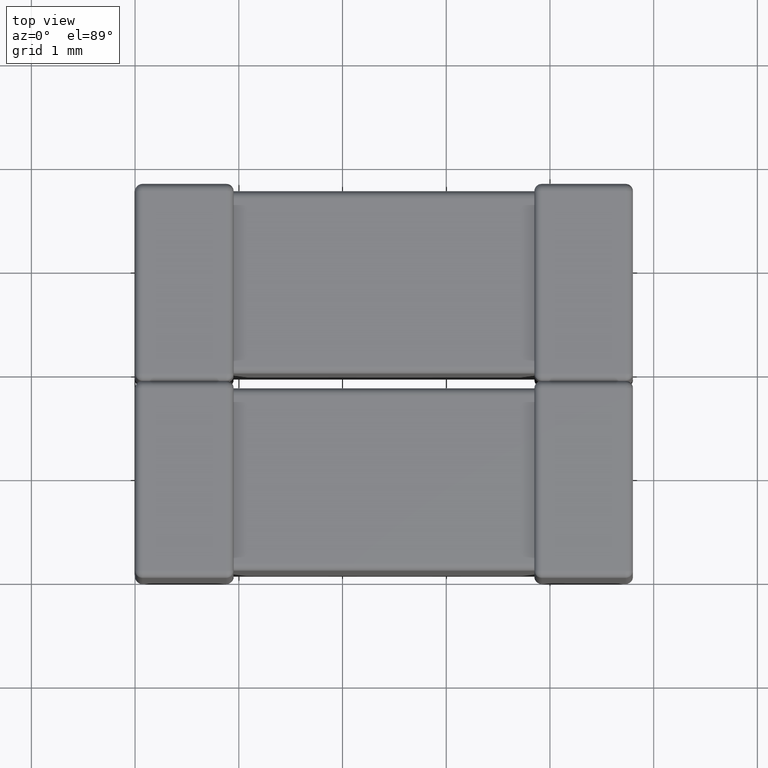
[diagram: clean part render]
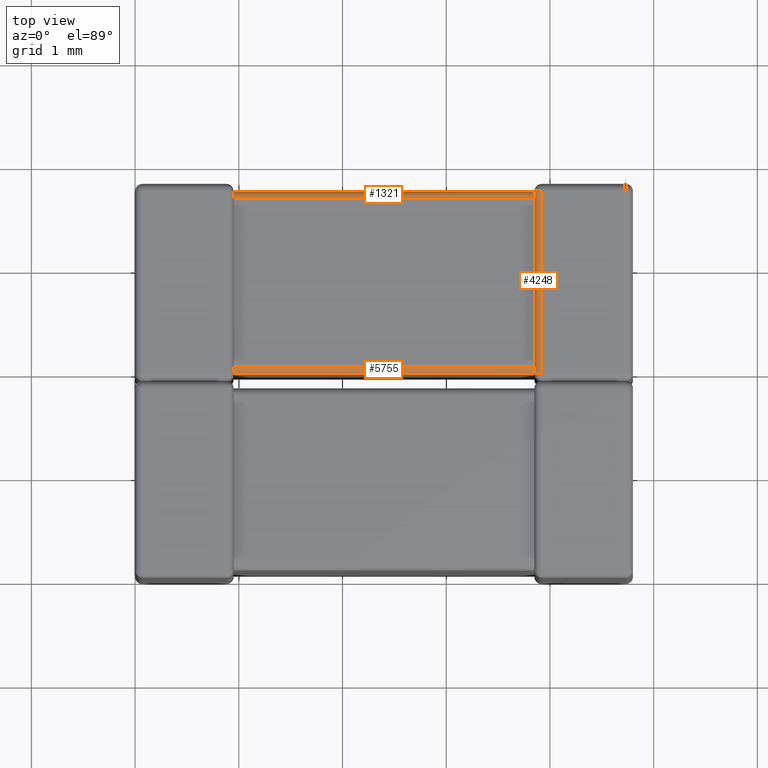
[diagram: same view with one multi-face feature highlighted, each face labeled with its STEP entity id]
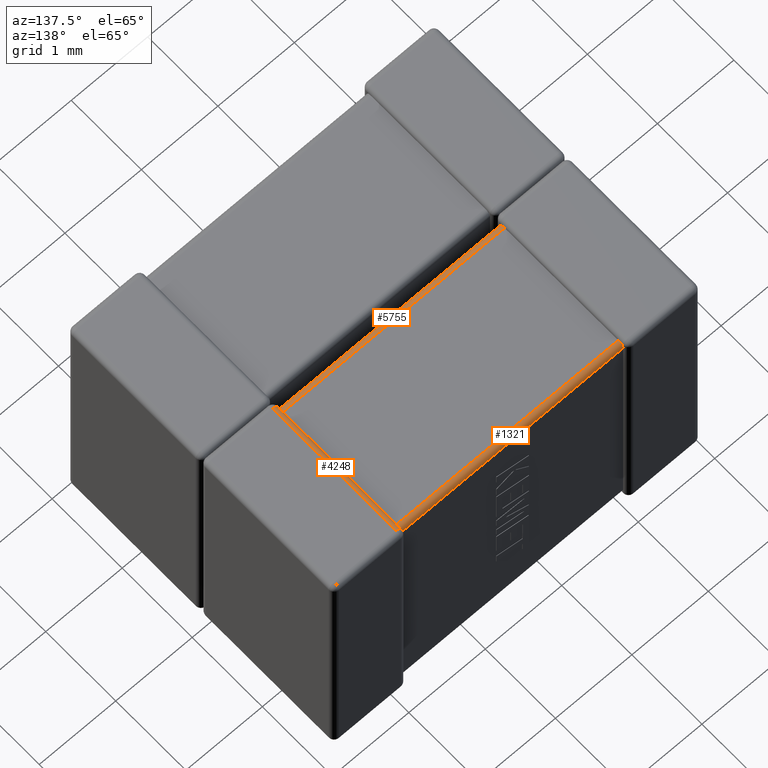
[diagram: same view with one multi-face feature highlighted, each face labeled with its STEP entity id]
A machine part, top view. The highlighted faces form ONE feature: a constant-radius fillet chain: 3 tangent blend faces with common blend radius 0.07 mm. The faces share edges in the B-rep.
A second angle (auxiliary view) of the same feature is appended — it is thin or edge-on in the first view.
Their STEP definitions:
[1] entity #5755 (Cylinder):
#31 = B_SPLINE_CURVE_WITH_KNOTS ( 'NONE', 3,
 ( #6658, #5554, #453, #2699, #2155, #4986, #4446, #5735, #2893, #4593 ),
 .UNSPECIFIED., .F., .F.,
 ( 4, 3, 3, 4 ),
 ( 0.000000000000000000, 2.203297621528337616E-05, 4.394974133713060134E-05, 5.478463513889102779E-05 ),
 .UNSPECIFIED. ) ;
#136 = DIRECTION ( 'NONE',  ( 1.000000000000000000, 0.000000000000000000, 2.990902544787600071E-16 ) ) ;
#144 = CARTESIAN_POINT ( 'NONE',  ( 3.850019257285294039, 2.021845127373007145, -0.07200020706014717553 ) ) ;
#421 = ORIENTED_EDGE ( 'NONE', *, *, #4788, .T. ) ;
#453 = CARTESIAN_POINT ( 'NONE',  ( 0.9492155128873838166, 1.980975154222797574, -0.1016610810659962505 ) ) ;
#467 = CARTESIAN_POINT ( 'NONE',  ( 3.851638929392144473, 1.985058686043205789, -0.09662429227435062606 ) ) ;
#473 = CARTESIAN_POINT ( 'NONE',  ( 3.849998269037859799, 2.032682880853044605, -0.07028770530935565808 ) ) ;
#490 = B_SPLINE_CURVE_WITH_KNOTS ( 'NONE', 3,
 ( #3257, #6714, #7300, #1617, #1506, #1541, #467, #4968, #2211, #2681 ),
 .UNSPECIFIED., .F., .F.,
 ( 4, 3, 3, 4 ),
 ( 0.000000000000000000, 2.329465563853465158E-05, 4.663741647194884058E-05, 5.484644941049103605E-05 ),
 .UNSPECIFIED. ) ;
#592 = CARTESIAN_POINT ( 'NONE',  ( 3.851515069394535029, 1.995578045350695051, -0.08542700528318863951 ) ) ;
#668 = LINE ( 'NONE', #1673, #3741 ) ;
#688 = CARTESIAN_POINT ( 'NONE',  ( 3.853069838969055638, 1.990502525316941718, -0.09050252531694193137 ) ) ;
#743 = VERTEX_POINT ( 'NONE', #1392 ) ;
#771 = CARTESIAN_POINT ( 'NONE',  ( 0.9499999999999990674, 2.040000000000000036, -0.1400000000000012346 ) ) ;
#938 = EDGE_CURVE ( 'NONE', #4133, #743, #6008, .T. ) ;
#1127 = CARTESIAN_POINT ( 'NONE',  ( 3.849999999999999201, 2.040000000000000036, -0.07000000000000018707 ) ) ;
#1261 = LINE ( 'NONE', #3544, #5067 ) ;
#1387 = AXIS2_PLACEMENT_3D ( 'NONE', #771, #6416, #4237 ) ;
#1392 = CARTESIAN_POINT ( 'NONE',  ( 0.9469301610309444062, 1.990502525316942162, -0.09050252531694240321 ) ) ;
#1478 = VERTEX_POINT ( 'NONE', #1127 ) ;
#1482 = CARTESIAN_POINT ( 'NONE',  ( 0.9500000000000002887, 2.040000000000000036, -0.07000000000000104750 ) ) ;
#1502 = CARTESIAN_POINT ( 'NONE',  ( 0.9500338866391063730, 2.024364036696785440, -0.07132838915958612802 ) ) ;
#1506 = CARTESIAN_POINT ( 'NONE',  ( 3.850248814182041457, 1.976426191787060471, -0.1096887195479656352 ) ) ;
#1540 = CARTESIAN_POINT ( 'NONE',  ( 0.9497511858179586985, 2.009688719547965352, -0.07642619178706200334 ) ) ;
#1541 = CARTESIAN_POINT ( 'NONE',  ( 3.850587648840690047, 1.980286246814413564, -0.1026692445242881196 ) ) ;
#1617 = CARTESIAN_POINT ( 'NONE',  ( 3.850107388028410682, 1.973875924636632861, -0.1170303100295251031 ) ) ;
#1654 = CARTESIAN_POINT ( 'NONE',  ( 0.9479861658109871581, 1.994468557925224816, -0.08676062027680320199 ) ) ;
#1673 = CARTESIAN_POINT ( 'NONE',  ( 0.9500000000000002887, 2.040000000000000036, -0.07000000000000104750 ) ) ;
#1894 = CYLINDRICAL_SURFACE ( 'NONE', #1387, 0.07000000000000000666 ) ;
#2155 = CARTESIAN_POINT ( 'NONE',  ( 0.9499463604316269461, 1.974321026521861810, -0.1147074951695435940 ) ) ;
#2211 = CARTESIAN_POINT ( 'NONE',  ( 3.852483002674707446, 1.988586807763194075, -0.09241824287036298768 ) ) ;
#2280 = CARTESIAN_POINT ( 'NONE',  ( 3.850418438474917160, 2.008195442639871597, -0.07764240117574876254 ) ) ;
#2365 = DIRECTION ( 'NONE',  ( -1.000000000000000000, -0.000000000000000000, -2.990902544787600071E-16 ) ) ;
#2413 = CARTESIAN_POINT ( 'NONE',  ( 3.850005256654396302, 2.029074667939152476, -0.07085784846159201567 ) ) ;
#2637 = CARTESIAN_POINT ( 'NONE',  ( 0.9494123511593098863, 2.002669244524287961, -0.08028624681441474953 ) ) ;
#2681 = CARTESIAN_POINT ( 'NONE',  ( 3.853069838969055638, 1.990502525316941718, -0.09050252531694193137 ) ) ;
#2699 = CARTESIAN_POINT ( 'NONE',  ( 0.9495815615250831065, 1.977642401175748743, -0.1081954426398719360 ) ) ;
#2827 = ORIENTED_EDGE ( 'NONE', *, *, #5039, .T. ) ;
#2893 = CARTESIAN_POINT ( 'NONE',  ( 0.9499999999999999556, 1.969999999999999973, -0.1363470132120688516 ) ) ;
#3235 = CARTESIAN_POINT ( 'NONE',  ( 0.9499999999999999556, 1.969999999999999973, -0.1400000000000012346 ) ) ;
#3257 = CARTESIAN_POINT ( 'NONE',  ( 3.849999999999999645, 1.969999999999999973, -0.1400000000000003741 ) ) ;
#3296 = CARTESIAN_POINT ( 'NONE',  ( 0.9500000000000002887, 2.040000000000000036, -0.07000000000000104750 ) ) ;
#3344 = EDGE_LOOP ( 'NONE', ( #3475, #421, #4254, #2827, #6876, #6995 ) ) ;
#3475 = ORIENTED_EDGE ( 'NONE', *, *, #938, .T. ) ;
#3544 = CARTESIAN_POINT ( 'NONE',  ( 3.849999999999999201, 1.969999999999999973, -0.1400000000000003741 ) ) ;
#3741 = VECTOR ( 'NONE', #2365, 1000.000000000000000 ) ;
#3814 = CARTESIAN_POINT ( 'NONE',  ( 0.9483610706078550168, 1.996624292274350454, -0.08505868604320704351 ) ) ;
#4108 = CARTESIAN_POINT ( 'NONE',  ( 3.850053639568372876, 2.014707495169543616, -0.07432102652186195479 ) ) ;
#4133 = VERTEX_POINT ( 'NONE', #1482 ) ;
#4237 = DIRECTION ( 'NONE',  ( 0.000000000000000000, 0.000000000000000000, 1.000000000000000000 ) ) ;
#4254 = ORIENTED_EDGE ( 'NONE', *, *, #4952, .T. ) ;
#4341 = CARTESIAN_POINT ( 'NONE',  ( 0.9498926119715893623, 2.017030310029524820, -0.07387592463663411602 ) ) ;
#4446 = CARTESIAN_POINT ( 'NONE',  ( 0.9499947433456038537, 1.970857848461591733, -0.1290746679391527041 ) ) ;
#4508 = EDGE_CURVE ( 'NONE', #7006, #1478, #5370, .T. ) ;
#4593 = CARTESIAN_POINT ( 'NONE',  ( 0.9499999999999999556, 1.969999999999999973, -0.1400000000000012346 ) ) ;
#4701 = CARTESIAN_POINT ( 'NONE',  ( 3.849999999999999645, 2.036347013212068013, -0.07000000000000033973 ) ) ;
#4788 = EDGE_CURVE ( 'NONE', #743, #5624, #31, .T. ) ;
#4926 = CARTESIAN_POINT ( 'NONE',  ( 0.9469301610309444062, 1.990502525316942162, -0.09050252531694240321 ) ) ;
#4952 = EDGE_CURVE ( 'NONE', #5624, #6088, #1261, .T. ) ;
#4968 = CARTESIAN_POINT ( 'NONE',  ( 3.852013834189012442, 1.986760620276801781, -0.09446855792522472484 ) ) ;
#4986 = CARTESIAN_POINT ( 'NONE',  ( 0.9499807427147061167, 1.972000207060147003, -0.1218451273730072615 ) ) ;
#5039 = EDGE_CURVE ( 'NONE', #6088, #7006, #490, .T. ) ;
#5067 = VECTOR ( 'NONE', #136, 1000.000000000000000 ) ;
#5127 = CARTESIAN_POINT ( 'NONE',  ( 3.850784487112616006, 2.001661081065996051, -0.08097515422279726038 ) ) ;
#5258 = CARTESIAN_POINT ( 'NONE',  ( 3.853069838969055638, 1.990502525316941718, -0.09050252531694193137 ) ) ;
#5370 = B_SPLINE_CURVE_WITH_KNOTS ( 'NONE', 3,
 ( #5258, #592, #5127, #2280, #4108, #144, #2413, #473, #4701, #6957 ),
 .UNSPECIFIED., .F., .F.,
 ( 4, 3, 3, 4 ),
 ( 0.000000000000000000, 2.203297621528344392E-05, 4.394974133713086561E-05, 5.478463513889030273E-05 ),
 .UNSPECIFIED. ) ;
#5554 = CARTESIAN_POINT ( 'NONE',  ( 0.9484849306054650153, 1.985427005283188828, -0.09557804535069559793 ) ) ;
#5568 = CARTESIAN_POINT ( 'NONE',  ( 0.9475169973252921540, 1.992418242870362954, -0.08858680776319524663 ) ) ;
#5624 = VERTEX_POINT ( 'NONE', #3235 ) ;
#5735 = CARTESIAN_POINT ( 'NONE',  ( 0.9500017309621398010, 1.970287705309355486, -0.1326828808530453041 ) ) ;
#5740 = CARTESIAN_POINT ( 'NONE',  ( 3.849999999999999645, 1.969999999999999973, -0.1400000000000003741 ) ) ;
#5755 = ADVANCED_FACE ( 'NONE', ( #5837 ), #1894, .T. ) ;
#5837 = FACE_OUTER_BOUND ( 'NONE', #3344, .T. ) ;
#6008 = B_SPLINE_CURVE_WITH_KNOTS ( 'NONE', 3,
 ( #3296, #6637, #1502, #4341, #1540, #2637, #3814, #1654, #5568, #4926 ),
 .UNSPECIFIED., .F., .F.,
 ( 4, 3, 3, 4 ),
 ( 0.000000000000000000, 2.329465563853448217E-05, 4.663741647194862374E-05, 5.484644941048997217E-05 ),
 .UNSPECIFIED. ) ;
#6088 = VERTEX_POINT ( 'NONE', #5740 ) ;
#6394 = EDGE_CURVE ( 'NONE', #1478, #4133, #668, .T. ) ;
#6416 = DIRECTION ( 'NONE',  ( -1.000000000000000000, -0.000000000000000000, -2.990902544787600071E-16 ) ) ;
#6637 = CARTESIAN_POINT ( 'NONE',  ( 0.9500000000000002887, 2.032235114787160235, -0.07000000000000104750 ) ) ;
#6658 = CARTESIAN_POINT ( 'NONE',  ( 0.9469301610309444062, 1.990502525316942162, -0.09050252531694240321 ) ) ;
#6714 = CARTESIAN_POINT ( 'NONE',  ( 3.849999999999999645, 1.969999999999999973, -0.1322351147871601851 ) ) ;
#6876 = ORIENTED_EDGE ( 'NONE', *, *, #4508, .T. ) ;
#6957 = CARTESIAN_POINT ( 'NONE',  ( 3.849999999999999201, 2.040000000000000036, -0.07000000000000018707 ) ) ;
#6995 = ORIENTED_EDGE ( 'NONE', *, *, #6394, .T. ) ;
#7006 = VERTEX_POINT ( 'NONE', #688 ) ;
#7300 = CARTESIAN_POINT ( 'NONE',  ( 3.849966113360893782, 1.971328389159584749, -0.1243640366967853350 ) ) ;
[2] entity #4248 (Cylinder):
#15 = DIRECTION ( 'NONE',  ( 0.000000000000000000, -1.000000000000000000, 0.000000000000000000 ) ) ;
#56 = CARTESIAN_POINT ( 'NONE',  ( 3.849999999999999201, 3.667764885212840387, -0.07000000000000018707 ) ) ;
#144 = CARTESIAN_POINT ( 'NONE',  ( 3.850019257285294039, 2.021845127373007145, -0.07200020706014717553 ) ) ;
#204 = CIRCLE ( 'NONE', #6379, 0.07000000000000000666 ) ;
#206 = CYLINDRICAL_SURFACE ( 'NONE', #6576, 0.07000000000000000666 ) ;
#211 = CARTESIAN_POINT ( 'NONE',  ( 3.850000000000000089, 3.723038477005620184, -0.07696152299438023536 ) ) ;
#473 = CARTESIAN_POINT ( 'NONE',  ( 3.849998269037859799, 2.032682880853044605, -0.07028770530935565808 ) ) ;
#554 = CIRCLE ( 'NONE', #7310, 0.07000000000000000666 ) ;
#592 = CARTESIAN_POINT ( 'NONE',  ( 3.851515069394535029, 1.995578045350695051, -0.08542700528318863951 ) ) ;
#609 = CARTESIAN_POINT ( 'NONE',  ( 3.849999999999999201, 1.969999999999999973, -0.07000000000000018707 ) ) ;
#688 = CARTESIAN_POINT ( 'NONE',  ( 3.853069838969055638, 1.990502525316941718, -0.09050252531694193137 ) ) ;
#802 = DIRECTION ( 'NONE',  ( 0.000000000000000000, -1.000000000000000000, 0.000000000000000000 ) ) ;
#836 =( BOUNDED_CURVE ( )  B_SPLINE_CURVE ( 3, ( #609, #2369, #1646, #2784 ),
 .UNSPECIFIED., .F., .T. ) 
 B_SPLINE_CURVE_WITH_KNOTS ( ( 4, 4 ),
 ( 1.570796326794896558, 1.868047688116105221 ),
 .UNSPECIFIED. ) 
 CURVE ( )  GEOMETRIC_REPRESENTATION_ITEM ( )  RATIONAL_B_SPLINE_CURVE ( ( 1.000000000000000000, 0.9926503465430337458, 0.9926503465430337458, 1.000000000000000000 ) ) 
 REPRESENTATION_ITEM ( '' )  );
#887 = ORIENTED_EDGE ( 'NONE', *, *, #4508, .F. ) ;
#1103 = CARTESIAN_POINT ( 'NONE',  ( 3.850248814182041457, 3.690311280452035270, -0.07642619178706107352 ) ) ;
#1126 = ORIENTED_EDGE ( 'NONE', *, *, #2127, .F. ) ;
#1127 = CARTESIAN_POINT ( 'NONE',  ( 3.849999999999999201, 2.040000000000000036, -0.07000000000000018707 ) ) ;
#1141 = CARTESIAN_POINT ( 'NONE',  ( 3.850107388028410682, 3.682969689970475802, -0.07387592463663314457 ) ) ;
#1332 = VERTEX_POINT ( 'NONE', #6771 ) ;
#1341 = VERTEX_POINT ( 'NONE', #3444 ) ;
#1478 = VERTEX_POINT ( 'NONE', #1127 ) ;
#1646 = CARTESIAN_POINT ( 'NONE',  ( 3.851030856091387733, 1.983846298816448694, -0.08384629881644899141 ) ) ;
#1779 = CARTESIAN_POINT ( 'NONE',  ( 3.851638929392144917, 3.703375707725650390, -0.08505868604320623860 ) ) ;
#1843 =( BOUNDED_CURVE ( )  B_SPLINE_CURVE ( 3, ( #5278, #211, #7112, #6415 ),
 .UNSPECIFIED., .F., .T. ) 
 B_SPLINE_CURVE_WITH_KNOTS ( ( 4, 4 ),
 ( 4.712388980384683457, 5.009640341705893007 ),
 .UNSPECIFIED. ) 
 CURVE ( )  GEOMETRIC_REPRESENTATION_ITEM ( )  RATIONAL_B_SPLINE_CURVE ( ( 1.000000000000000000, 0.9926503465430336348, 0.9926503465430336348, 1.000000000000000000 ) ) 
 REPRESENTATION_ITEM ( '' )  );
#1854 = EDGE_CURVE ( 'NONE', #1341, #1332, #6089, .T. ) ;
#1999 = EDGE_LOOP ( 'NONE', ( #1126, #3091, #4661, #4835, #4152, #4208, #887, #6952 ) ) ;
#2030 = CARTESIAN_POINT ( 'NONE',  ( 3.919999999999999929, 3.799999999999999822, 0.000000000000000000 ) ) ;
#2127 = EDGE_CURVE ( 'NONE', #1341, #7170, #554, .T. ) ;
#2128 = VERTEX_POINT ( 'NONE', #6159 ) ;
#2259 = EDGE_CURVE ( 'NONE', #1332, #2128, #204, .T. ) ;
#2279 = CARTESIAN_POINT ( 'NONE',  ( 3.919999999999999929, 1.969999999999999973, -0.07000000000000018707 ) ) ;
#2280 = CARTESIAN_POINT ( 'NONE',  ( 3.850418438474917160, 2.008195442639871597, -0.07764240117574876254 ) ) ;
#2322 = CARTESIAN_POINT ( 'NONE',  ( 3.849999999999999201, 3.660000000000000586, -0.07000000000000018707 ) ) ;
#2369 = CARTESIAN_POINT ( 'NONE',  ( 3.849999999999999645, 1.976961522994380660, -0.07696152299438063782 ) ) ;
#2413 = CARTESIAN_POINT ( 'NONE',  ( 3.850005256654396302, 2.029074667939152476, -0.07085784846159201567 ) ) ;
#2464 = DIRECTION ( 'NONE',  ( 0.000000000000000000, 0.000000000000000000, -1.000000000000000000 ) ) ;
#2590 = B_SPLINE_CURVE_WITH_KNOTS ( 'NONE', 3,
 ( #2322, #56, #6870, #1141, #1103, #3343, #1779, #4014, #6296, #7267 ),
 .UNSPECIFIED., .F., .F.,
 ( 4, 3, 3, 4 ),
 ( 0.000000000000000000, 2.329465563853465158E-05, 4.663741647194887446E-05, 5.484644941049027710E-05 ),
 .UNSPECIFIED. ) ;
#2784 = CARTESIAN_POINT ( 'NONE',  ( 3.853069838969055638, 1.990502525316941718, -0.09050252531694193137 ) ) ;
#2909 = LINE ( 'NONE', #6370, #3998 ) ;
#3020 = EDGE_CURVE ( 'NONE', #2128, #5581, #1843, .T. ) ;
#3052 = CARTESIAN_POINT ( 'NONE',  ( 3.853069838969055638, 3.709497474683058460, -0.09050252531694163993 ) ) ;
#3091 = ORIENTED_EDGE ( 'NONE', *, *, #1854, .T. ) ;
#3343 = CARTESIAN_POINT ( 'NONE',  ( 3.850587648840690491, 3.697330755475712660, -0.08028624681441388911 ) ) ;
#3444 = CARTESIAN_POINT ( 'NONE',  ( 3.919999999999999929, 1.969999999999999973, 0.000000000000000000 ) ) ;
#3649 = VERTEX_POINT ( 'NONE', #4807 ) ;
#3998 = VECTOR ( 'NONE', #6892, 1000.000000000000000 ) ;
#4014 = CARTESIAN_POINT ( 'NONE',  ( 3.852013834189012886, 3.705531442074776027, -0.08676062027680239708 ) ) ;
#4077 = DIRECTION ( 'NONE',  ( -0.000000000000000000, -1.000000000000000000, -0.000000000000000000 ) ) ;
#4108 = CARTESIAN_POINT ( 'NONE',  ( 3.850053639568372876, 2.014707495169543616, -0.07432102652186195479 ) ) ;
#4152 = ORIENTED_EDGE ( 'NONE', *, *, #6644, .F. ) ;
#4158 = DIRECTION ( 'NONE',  ( 0.000000000000000000, 0.000000000000000000, 1.000000000000000000 ) ) ;
#4208 = ORIENTED_EDGE ( 'NONE', *, *, #5171, .T. ) ;
#4248 = ADVANCED_FACE ( 'NONE', ( #4722 ), #206, .T. ) ;
#4403 = DIRECTION ( 'NONE',  ( -0.000000000000000000, 1.000000000000000000, -0.000000000000000000 ) ) ;
#4508 = EDGE_CURVE ( 'NONE', #7006, #1478, #5370, .T. ) ;
#4661 = ORIENTED_EDGE ( 'NONE', *, *, #2259, .T. ) ;
#4701 = CARTESIAN_POINT ( 'NONE',  ( 3.849999999999999645, 2.036347013212068013, -0.07000000000000033973 ) ) ;
#4722 = FACE_OUTER_BOUND ( 'NONE', #1999, .T. ) ;
#4757 = CARTESIAN_POINT ( 'NONE',  ( 3.919999999999999929, 1.899999999999999911, -0.07000000000000018707 ) ) ;
#4807 = CARTESIAN_POINT ( 'NONE',  ( 3.849999999999999201, 3.660000000000000586, -0.07000000000000018707 ) ) ;
#4835 = ORIENTED_EDGE ( 'NONE', *, *, #3020, .T. ) ;
#5127 = CARTESIAN_POINT ( 'NONE',  ( 3.850784487112616006, 2.001661081065996051, -0.08097515422279726038 ) ) ;
#5171 = EDGE_CURVE ( 'NONE', #3649, #1478, #2909, .T. ) ;
#5258 = CARTESIAN_POINT ( 'NONE',  ( 3.853069838969055638, 1.990502525316941718, -0.09050252531694193137 ) ) ;
#5278 = CARTESIAN_POINT ( 'NONE',  ( 3.849999999999999645, 3.730000000000000870, -0.07000000000000018707 ) ) ;
#5370 = B_SPLINE_CURVE_WITH_KNOTS ( 'NONE', 3,
 ( #5258, #592, #5127, #2280, #4108, #144, #2413, #473, #4701, #6957 ),
 .UNSPECIFIED., .F., .F.,
 ( 4, 3, 3, 4 ),
 ( 0.000000000000000000, 2.203297621528344392E-05, 4.394974133713086561E-05, 5.478463513889030273E-05 ),
 .UNSPECIFIED. ) ;
#5433 = EDGE_CURVE ( 'NONE', #7170, #7006, #836, .T. ) ;
#5458 = CARTESIAN_POINT ( 'NONE',  ( 3.849999999999999201, 1.969999999999999973, -0.07000000000000018707 ) ) ;
#5581 = VERTEX_POINT ( 'NONE', #3052 ) ;
#5681 = VECTOR ( 'NONE', #4403, 1000.000000000000000 ) ;
#5688 = DIRECTION ( 'NONE',  ( 0.000000000000000000, 0.000000000000000000, 1.000000000000000000 ) ) ;
#6089 = LINE ( 'NONE', #2030, #5681 ) ;
#6159 = CARTESIAN_POINT ( 'NONE',  ( 3.849999999999999645, 3.730000000000000870, -0.07000000000000018707 ) ) ;
#6296 = CARTESIAN_POINT ( 'NONE',  ( 3.852483002674707446, 3.707581757129637889, -0.08858680776319449723 ) ) ;
#6370 = CARTESIAN_POINT ( 'NONE',  ( 3.849999999999999201, 3.799999999999999822, -0.07000000000000018707 ) ) ;
#6379 = AXIS2_PLACEMENT_3D ( 'NONE', #6896, #4077, #2464 ) ;
#6415 = CARTESIAN_POINT ( 'NONE',  ( 3.853069838969055638, 3.709497474683058460, -0.09050252531694163993 ) ) ;
#6576 = AXIS2_PLACEMENT_3D ( 'NONE', #4757, #802, #4158 ) ;
#6644 = EDGE_CURVE ( 'NONE', #3649, #5581, #2590, .T. ) ;
#6771 = CARTESIAN_POINT ( 'NONE',  ( 3.919999999999999929, 3.729999999999999982, 0.000000000000000000 ) ) ;
#6870 = CARTESIAN_POINT ( 'NONE',  ( 3.849966113360893782, 3.675635963303215625, -0.07132838915958514270 ) ) ;
#6892 = DIRECTION ( 'NONE',  ( 0.000000000000000000, -1.000000000000000000, 0.000000000000000000 ) ) ;
#6896 = CARTESIAN_POINT ( 'NONE',  ( 3.919999999999999929, 3.729999999999999982, -0.07000000000000000666 ) ) ;
#6952 = ORIENTED_EDGE ( 'NONE', *, *, #5433, .F. ) ;
#6957 = CARTESIAN_POINT ( 'NONE',  ( 3.849999999999999201, 2.040000000000000036, -0.07000000000000018707 ) ) ;
#7006 = VERTEX_POINT ( 'NONE', #688 ) ;
#7112 = CARTESIAN_POINT ( 'NONE',  ( 3.851030856091388177, 3.716153701183551483, -0.08384629881644863059 ) ) ;
#7170 = VERTEX_POINT ( 'NONE', #5458 ) ;
#7267 = CARTESIAN_POINT ( 'NONE',  ( 3.853069838969055638, 3.709497474683058460, -0.09050252531694163993 ) ) ;
#7310 = AXIS2_PLACEMENT_3D ( 'NONE', #2279, #15, #5688 ) ;
[3] entity #1321 (Cylinder):
#1 = CARTESIAN_POINT ( 'NONE',  ( 0.9500000000000002887, 3.660000000000000586, -0.1400000000000010680 ) ) ;
#56 = CARTESIAN_POINT ( 'NONE',  ( 3.849999999999999201, 3.667764885212840387, -0.07000000000000018707 ) ) ;
#94 = CARTESIAN_POINT ( 'NONE',  ( 0.9500000000000002887, 3.660000000000000586, -0.07000000000000104750 ) ) ;
#270 = VERTEX_POINT ( 'NONE', #94 ) ;
#290 = ORIENTED_EDGE ( 'NONE', *, *, #3213, .T. ) ;
#361 = CARTESIAN_POINT ( 'NONE',  ( 3.850053639568372876, 3.725678973478138811, -0.1147074951695434414 ) ) ;
#365 = EDGE_CURVE ( 'NONE', #270, #3649, #2573, .T. ) ;
#512 = CARTESIAN_POINT ( 'NONE',  ( 3.851515069394535029, 3.714572994716811571, -0.09557804535069494567 ) ) ;
#923 = CARTESIAN_POINT ( 'NONE',  ( 0.9498926119715915828, 3.726124075363367982, -0.1170303100295261300 ) ) ;
#940 = CARTESIAN_POINT ( 'NONE',  ( 0.9500017309621423545, 3.667317119146955573, -0.07028770530935642136 ) ) ;
#967 = CARTESIAN_POINT ( 'NONE',  ( 0.9500000000000002887, 3.660000000000000586, -0.07000000000000104750 ) ) ;
#987 = CARTESIAN_POINT ( 'NONE',  ( 3.850418438474917160, 3.722357598824251657, -0.1081954426398716307 ) ) ;
#1103 = CARTESIAN_POINT ( 'NONE',  ( 3.850248814182041457, 3.690311280452035270, -0.07642619178706107352 ) ) ;
#1141 = CARTESIAN_POINT ( 'NONE',  ( 3.850107388028410682, 3.682969689970475802, -0.07387592463663314457 ) ) ;
#1180 = ORIENTED_EDGE ( 'NONE', *, *, #6644, .T. ) ;
#1316 = EDGE_CURVE ( 'NONE', #5392, #270, #5306, .T. ) ;
#1321 = ADVANCED_FACE ( 'NONE', ( #5998 ), #2196, .T. ) ;
#1450 = CARTESIAN_POINT ( 'NONE',  ( 0.9499463604316294996, 3.685292504830457005, -0.07432102652186263481 ) ) ;
#1735 = EDGE_LOOP ( 'NONE', ( #2420, #5065, #3526, #1180, #4163, #290 ) ) ;
#1779 = CARTESIAN_POINT ( 'NONE',  ( 3.851638929392144917, 3.703375707725650390, -0.08505868604320623860 ) ) ;
#2125 = CARTESIAN_POINT ( 'NONE',  ( 0.9492155128873863701, 3.698338918934004571, -0.08097515422279800978 ) ) ;
#2144 = CARTESIAN_POINT ( 'NONE',  ( 3.849998269037859799, 3.729712294690645358, -0.1326828808530449988 ) ) ;
#2196 = CYLINDRICAL_SURFACE ( 'NONE', #5436, 0.07000000000000002054 ) ;
#2303 = CARTESIAN_POINT ( 'NONE',  ( 0.9469301610309469597, 3.709497474683058904, -0.09050252531694276403 ) ) ;
#2322 = CARTESIAN_POINT ( 'NONE',  ( 3.849999999999999201, 3.660000000000000586, -0.07000000000000018707 ) ) ;
#2420 = ORIENTED_EDGE ( 'NONE', *, *, #6606, .T. ) ;
#2573 = LINE ( 'NONE', #4189, #5236 ) ;
#2590 = B_SPLINE_CURVE_WITH_KNOTS ( 'NONE', 3,
 ( #2322, #56, #6870, #1141, #1103, #3343, #1779, #4014, #6296, #7267 ),
 .UNSPECIFIED., .F., .F.,
 ( 4, 3, 3, 4 ),
 ( 0.000000000000000000, 2.329465563853465158E-05, 4.663741647194887446E-05, 5.484644941049027710E-05 ),
 .UNSPECIFIED. ) ;
#2954 = B_SPLINE_CURVE_WITH_KNOTS ( 'NONE', 3,
 ( #3794, #3751, #6023, #923, #7194, #3196, #4542, #3491, #5760, #5610 ),
 .UNSPECIFIED., .F., .F.,
 ( 4, 3, 3, 4 ),
 ( 1.626303258728256170E-19, 2.329465563853425856E-05, 4.663741647194804098E-05, 5.484644941049067013E-05 ),
 .UNSPECIFIED. ) ;
#3052 = CARTESIAN_POINT ( 'NONE',  ( 3.853069838969055638, 3.709497474683058460, -0.09050252531694163993 ) ) ;
#3132 = EDGE_CURVE ( 'NONE', #5581, #6851, #3314, .T. ) ;
#3194 = CARTESIAN_POINT ( 'NONE',  ( 3.850005256654396302, 3.729142151538408889, -0.1290746679391527596 ) ) ;
#3196 = CARTESIAN_POINT ( 'NONE',  ( 0.9494123511593123288, 3.719713753185587279, -0.1026692445242894103 ) ) ;
#3206 = CARTESIAN_POINT ( 'NONE',  ( 0.9499947433456064072, 3.670925332060847701, -0.07085784846159276507 ) ) ;
#3213 = EDGE_CURVE ( 'NONE', #6851, #5907, #6868, .T. ) ;
#3224 = CARTESIAN_POINT ( 'NONE',  ( 3.849999999999999645, 3.730000000000000870, -0.1400000000000003741 ) ) ;
#3314 = B_SPLINE_CURVE_WITH_KNOTS ( 'NONE', 3,
 ( #4474, #512, #3902, #987, #361, #3822, #3194, #2144, #6645, #3224 ),
 .UNSPECIFIED., .F., .F.,
 ( 4, 3, 3, 4 ),
 ( 0.000000000000000000, 2.203297621528376240E-05, 4.394974133713124508E-05, 5.478463513889078384E-05 ),
 .UNSPECIFIED. ) ;
#3343 = CARTESIAN_POINT ( 'NONE',  ( 3.850587648840690491, 3.697330755475712660, -0.08028624681441388911 ) ) ;
#3491 = CARTESIAN_POINT ( 'NONE',  ( 0.9479861658109898226, 3.713239379723198397, -0.09446855792522583506 ) ) ;
#3526 = ORIENTED_EDGE ( 'NONE', *, *, #365, .T. ) ;
#3649 = VERTEX_POINT ( 'NONE', #4807 ) ;
#3751 = CARTESIAN_POINT ( 'NONE',  ( 0.9499999999999999556, 3.730000000000000870, -0.1322351147871609900 ) ) ;
#3770 = CARTESIAN_POINT ( 'NONE',  ( 0.9499807427147087813, 3.678154872626993033, -0.07200020706014796656 ) ) ;
#3794 = CARTESIAN_POINT ( 'NONE',  ( 0.9499999999999999556, 3.730000000000000870, -0.1400000000000012346 ) ) ;
#3822 = CARTESIAN_POINT ( 'NONE',  ( 3.850019257285294039, 3.727999792939853396, -0.1218451273730071782 ) ) ;
#3838 = CARTESIAN_POINT ( 'NONE',  ( 0.9495815615250856601, 3.691804557360129024, -0.07764240117574951194 ) ) ;
#3902 = CARTESIAN_POINT ( 'NONE',  ( 3.850784487112616006, 3.719024845777203492, -0.1016610810659958064 ) ) ;
#4014 = CARTESIAN_POINT ( 'NONE',  ( 3.852013834189012886, 3.705531442074776027, -0.08676062027680239708 ) ) ;
#4163 = ORIENTED_EDGE ( 'NONE', *, *, #3132, .T. ) ;
#4189 = CARTESIAN_POINT ( 'NONE',  ( 0.9500000000000002887, 3.660000000000000586, -0.07000000000000104750 ) ) ;
#4299 = CARTESIAN_POINT ( 'NONE',  ( 0.9499999999999999556, 3.730000000000000870, -0.1400000000000012346 ) ) ;
#4374 = CARTESIAN_POINT ( 'NONE',  ( 0.9500000000000027311, 3.663652986787932608, -0.07000000000000106137 ) ) ;
#4447 = CARTESIAN_POINT ( 'NONE',  ( 0.9469301610309469597, 3.709497474683058904, -0.09050252531694276403 ) ) ;
#4474 = CARTESIAN_POINT ( 'NONE',  ( 3.853069838969055638, 3.709497474683058460, -0.09050252531694163993 ) ) ;
#4542 = CARTESIAN_POINT ( 'NONE',  ( 0.9483610706078576813, 3.714941313956794833, -0.09662429227435191670 ) ) ;
#4807 = CARTESIAN_POINT ( 'NONE',  ( 3.849999999999999201, 3.660000000000000586, -0.07000000000000018707 ) ) ;
#5065 = ORIENTED_EDGE ( 'NONE', *, *, #1316, .T. ) ;
#5236 = VECTOR ( 'NONE', #6527, 1000.000000000000000 ) ;
#5306 = B_SPLINE_CURVE_WITH_KNOTS ( 'NONE', 3,
 ( #4447, #7212, #2125, #3838, #1450, #3770, #3206, #940, #4374, #967 ),
 .UNSPECIFIED., .F., .F.,
 ( 4, 3, 3, 4 ),
 ( 0.000000000000000000, 2.203297621528359300E-05, 4.394974133713089949E-05, 5.478463513889035694E-05 ),
 .UNSPECIFIED. ) ;
#5369 = VECTOR ( 'NONE', #6898, 1000.000000000000000 ) ;
#5392 = VERTEX_POINT ( 'NONE', #2303 ) ;
#5436 = AXIS2_PLACEMENT_3D ( 'NONE', #1, #6205, #6737 ) ;
#5581 = VERTEX_POINT ( 'NONE', #3052 ) ;
#5610 = CARTESIAN_POINT ( 'NONE',  ( 0.9469301610309469597, 3.709497474683058904, -0.09050252531694276403 ) ) ;
#5760 = CARTESIAN_POINT ( 'NONE',  ( 0.9475169973252945965, 3.711413192236806324, -0.09241824287036397301 ) ) ;
#5907 = VERTEX_POINT ( 'NONE', #4299 ) ;
#5998 = FACE_OUTER_BOUND ( 'NONE', #1735, .T. ) ;
#6023 = CARTESIAN_POINT ( 'NONE',  ( 0.9500338866391087045, 3.728671610840415873, -0.1243640366967862509 ) ) ;
#6205 = DIRECTION ( 'NONE',  ( 1.000000000000000000, 0.000000000000000000, 2.990902544787600071E-16 ) ) ;
#6267 = CARTESIAN_POINT ( 'NONE',  ( 0.9499999999999990674, 3.730000000000000870, -0.1400000000000012346 ) ) ;
#6296 = CARTESIAN_POINT ( 'NONE',  ( 3.852483002674707446, 3.707581757129637889, -0.08858680776319449723 ) ) ;
#6527 = DIRECTION ( 'NONE',  ( 1.000000000000000000, 0.000000000000000000, 2.990902544787600071E-16 ) ) ;
#6605 = CARTESIAN_POINT ( 'NONE',  ( 3.849999999999999645, 3.730000000000000870, -0.1400000000000003741 ) ) ;
#6606 = EDGE_CURVE ( 'NONE', #5907, #5392, #2954, .T. ) ;
#6644 = EDGE_CURVE ( 'NONE', #3649, #5581, #2590, .T. ) ;
#6645 = CARTESIAN_POINT ( 'NONE',  ( 3.849999999999999645, 3.730000000000000426, -0.1363470132120682132 ) ) ;
#6737 = DIRECTION ( 'NONE',  ( 0.000000000000000000, 0.000000000000000000, -1.000000000000000000 ) ) ;
#6851 = VERTEX_POINT ( 'NONE', #6605 ) ;
#6868 = LINE ( 'NONE', #6267, #5369 ) ;
#6870 = CARTESIAN_POINT ( 'NONE',  ( 3.849966113360893782, 3.675635963303215625, -0.07132838915958514270 ) ) ;
#6898 = DIRECTION ( 'NONE',  ( -1.000000000000000000, -0.000000000000000000, -2.990902544787600071E-16 ) ) ;
#7194 = CARTESIAN_POINT ( 'NONE',  ( 0.9497511858179610300, 3.723573808212940150, -0.1096887195479667315 ) ) ;
#7212 = CARTESIAN_POINT ( 'NONE',  ( 0.9484849306054675688, 3.704421954649305793, -0.08542700528318944442 ) ) ;
#7267 = CARTESIAN_POINT ( 'NONE',  ( 3.853069838969055638, 3.709497474683058460, -0.09050252531694163993 ) ) ;